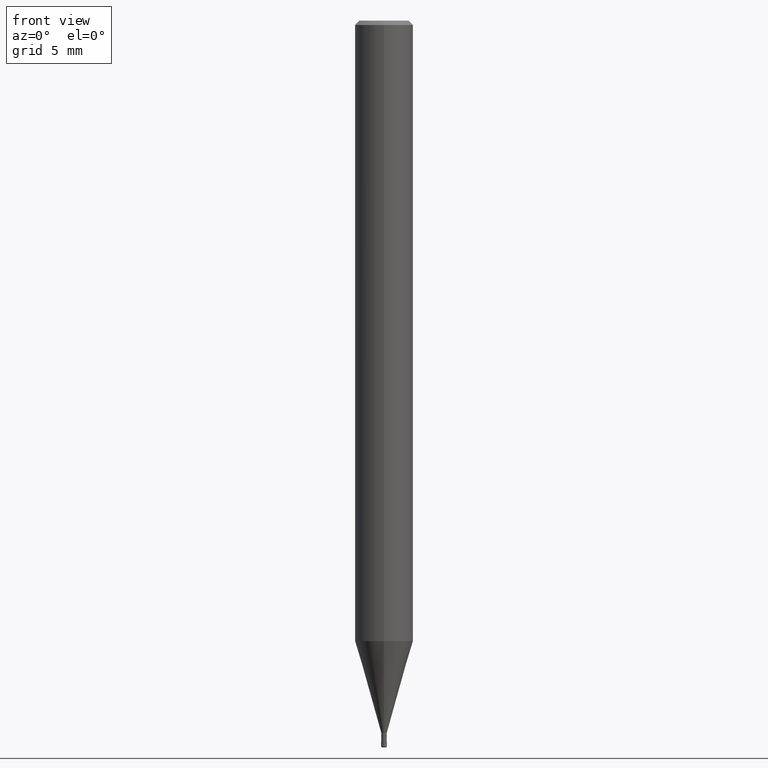
[diagram: clean part render]
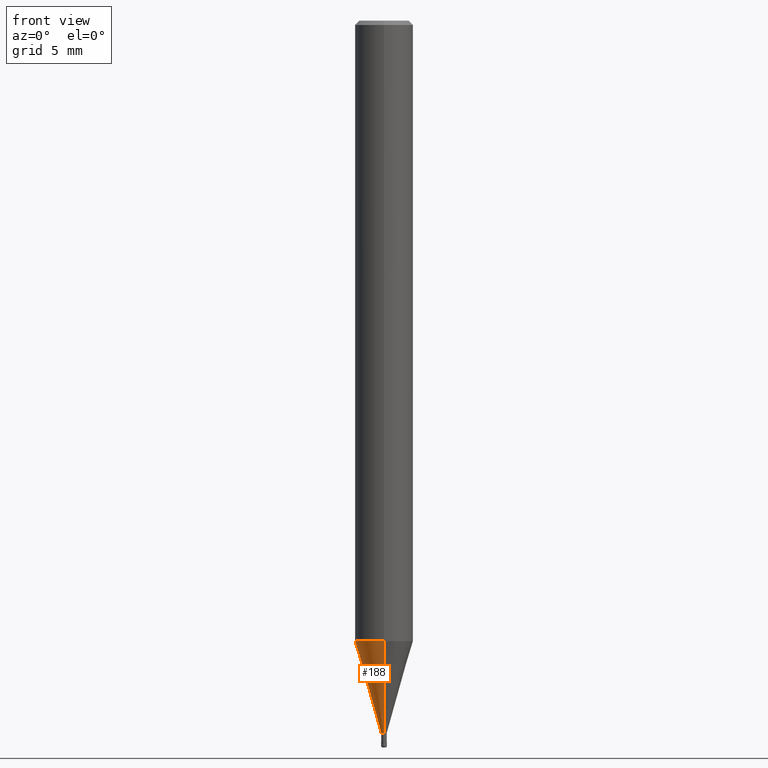
[diagram: same view with one face highlighted and labeled with its STEP entity id]
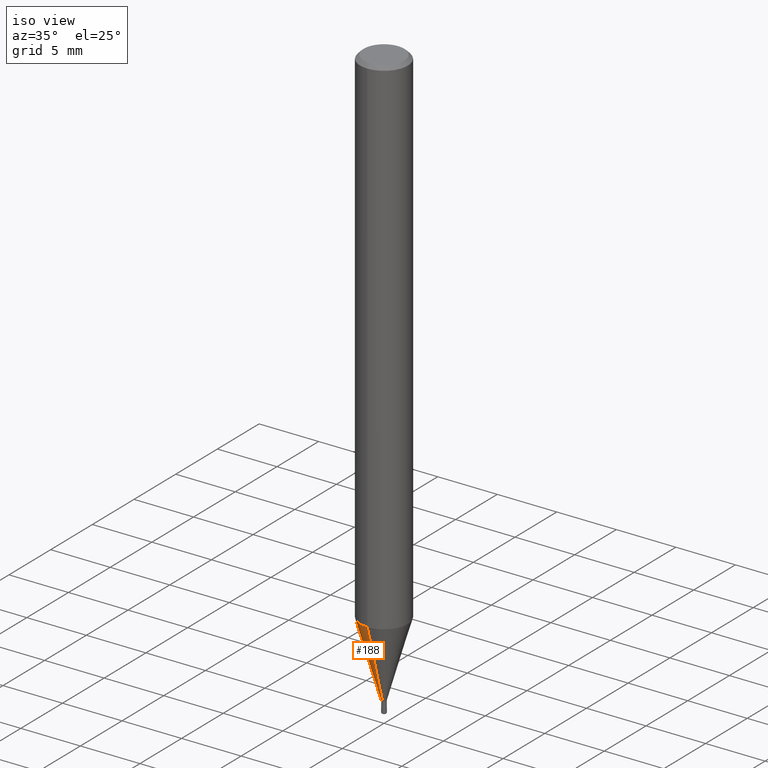
[diagram: same view with one face highlighted and labeled with its STEP entity id]
A machine part, front view. The second image highlights one B-rep face of the part: STEP entity #188.
A second angle (iso view) of the same face is appended — the face is thin or edge-on in the first view.
In plain terms, the highlighted conical surface has half-angle 16.001 deg.
Its self-contained STEP definition (entity closure, byte-faithful):
#108=EDGE_CURVE('',#208,#148,#262,.T.);
#148=VERTEX_POINT('',#306);
#154=EDGE_CURVE('',#208,#172,#312,.T.);
#172=VERTEX_POINT('',#332);
#188=ADVANCED_FACE('',(#353),#354,.T.);
#190=EDGE_CURVE('',#148,#232,#356,.T.);
#192=EDGE_CURVE('',#232,#172,#358,.T.);
#208=VERTEX_POINT('',#376);
#232=VERTEX_POINT('',#403);
#262=LINE('',#425,#426);
#306=CARTESIAN_POINT('',(2.44915147732706E-016,-1.99995,-42.688));
#312=CIRCLE('',#495,0.18995);
#332=CARTESIAN_POINT('',(0.0,0.18995,-49.0));
#353=FACE_OUTER_BOUND('',#540,.T.);
#354=CONICAL_SURFACE('',#541,1.09495,0.279261921280279);
#356=CIRCLE('',#544,1.99995);
#358=LINE('',#547,#548);
#376=CARTESIAN_POINT('',(2.3261397690856E-017,-0.18995,-49.0));
#403=CARTESIAN_POINT('',(0.0,1.99995,-42.688));
#425=CARTESIAN_POINT('',(1.34088272711781E-016,-1.09495,-45.844));
#426=VECTOR('',#613,1.0);
#495=AXIS2_PLACEMENT_3D('',#664,#665,#666);
#540=EDGE_LOOP('',(#734,#735,#736,#737));
#541=AXIS2_PLACEMENT_3D('',#738,#739,#740);
#544=AXIS2_PLACEMENT_3D('',#741,#742,#743);
#547=CARTESIAN_POINT('',(-1.34088272711781E-016,1.09495,-45.844));
#548=VECTOR('',#744,1.0);
#613=DIRECTION('',(3.37558135426109E-017,-0.275646238787252,0.961259148743169));
#664=CARTESIAN_POINT('',(0.0,0.0,-49.0));
#665=DIRECTION('',(0.0,0.0,-1.0));
#666=DIRECTION('',(0.0,1.0,0.0));
#734=ORIENTED_EDGE('',*,*,#192,.T.);
#735=ORIENTED_EDGE('',*,*,#154,.F.);
#736=ORIENTED_EDGE('',*,*,#108,.T.);
#737=ORIENTED_EDGE('',*,*,#190,.T.);
#738=CARTESIAN_POINT('',(0.0,0.0,-45.844));
#739=DIRECTION('',(-0.0,-0.0,1.0));
#740=DIRECTION('',(0.0,1.0,0.0));
#741=CARTESIAN_POINT('',(0.0,0.0,-42.688));
#742=DIRECTION('',(0.0,0.0,-1.0));
#743=DIRECTION('',(0.0,1.0,0.0));
#744=DIRECTION('',(3.37558135426109E-017,-0.275646238787252,-0.961259148743169));